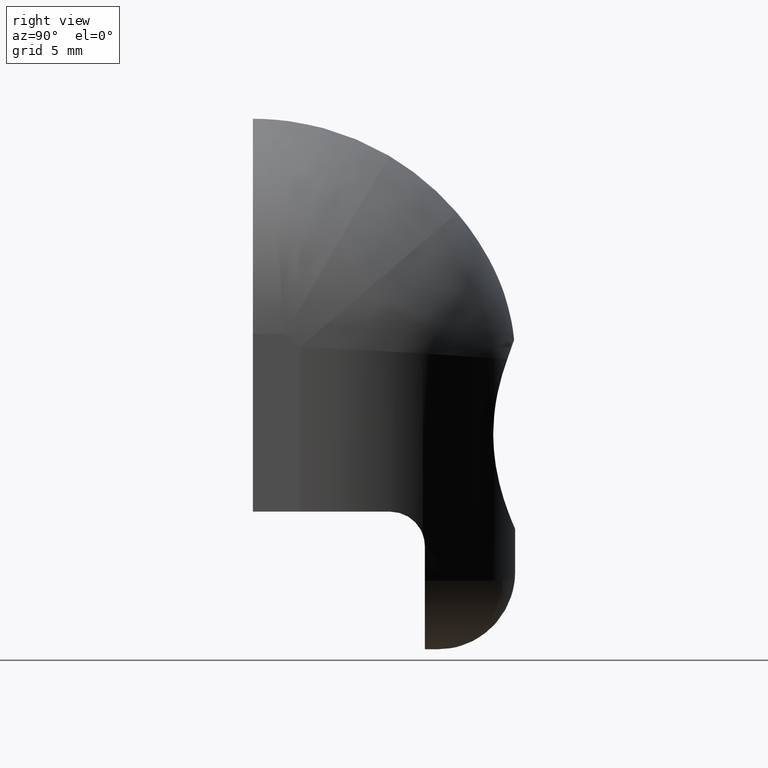
[diagram: clean part render]
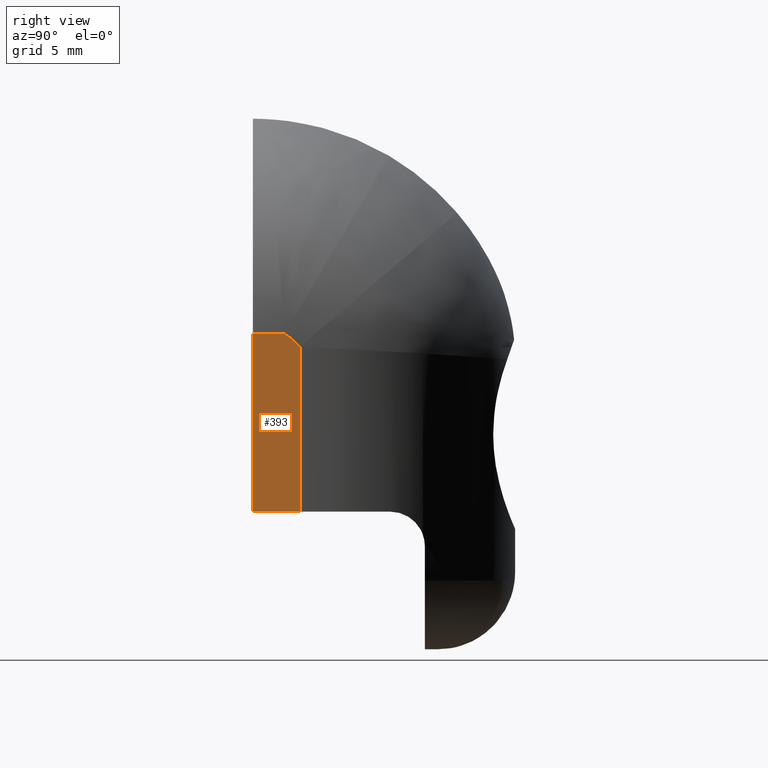
[diagram: same view with one face highlighted and labeled with its STEP entity id]
A machine part, right view. The second image highlights one B-rep face of the part: STEP entity #393.
In plain terms, the highlighted planar face has unit normal (1, 0, 0).
Its self-contained STEP definition (entity closure, byte-faithful):
#33=LINE('',#838,#50);
#40=LINE('',#1204,#57);
#41=LINE('',#1207,#58);
#43=LINE('',#1210,#60);
#50=VECTOR('',#488,10.);
#57=VECTOR('',#541,10.);
#58=VECTOR('',#544,10.);
#60=VECTOR('',#548,10.);
#66=PLANE('',#452);
#92=FACE_OUTER_BOUND('',#117,.T.);
#117=EDGE_LOOP('',(#355,#356,#357,#358,#359));
#156=CIRCLE('',#443,3.61734693877551);
#177=VERTEX_POINT('',#828);
#178=VERTEX_POINT('',#837);
#189=VERTEX_POINT('',#1156);
#193=VERTEX_POINT('',#1202);
#194=VERTEX_POINT('',#1206);
#219=EDGE_CURVE('',#178,#177,#33,.T.);
#241=EDGE_CURVE('',#189,#177,#156,.T.);
#248=EDGE_CURVE('',#189,#193,#40,.T.);
#249=EDGE_CURVE('',#194,#178,#41,.T.);
#251=EDGE_CURVE('',#194,#193,#43,.T.);
#355=ORIENTED_EDGE('',*,*,#241,.F.);
#356=ORIENTED_EDGE('',*,*,#248,.T.);
#357=ORIENTED_EDGE('',*,*,#251,.F.);
#358=ORIENTED_EDGE('',*,*,#249,.T.);
#359=ORIENTED_EDGE('',*,*,#219,.T.);
#393=ADVANCED_FACE('',(#92),#66,.T.);
#443=AXIS2_PLACEMENT_3D('',#1190,#522,#523);
#452=AXIS2_PLACEMENT_3D('',#1209,#546,#547);
#488=DIRECTION('',(0.,0.,1.));
#522=DIRECTION('center_axis',(-1.,0.,0.));
#523=DIRECTION('ref_axis',(0.,0.695248106443174,0.718769831369668));
#541=DIRECTION('',(0.,-1.,0.));
#544=DIRECTION('',(0.,1.,0.));
#546=DIRECTION('center_axis',(1.,0.,0.));
#547=DIRECTION('ref_axis',(0.,1.,0.));
#548=DIRECTION('',(0.,0.,1.));
#828=CARTESIAN_POINT('',(12.5,1.37499999999999,2.08269537477302));
#837=CARTESIAN_POINT('',(12.5,1.375,-7.50000000000001));
#838=CARTESIAN_POINT('',(12.5,1.37499999999999,0.));
#1156=CARTESIAN_POINT('',(12.5,0.460033225523581,2.85));
#1190=CARTESIAN_POINT('Origin',(12.5,-1.37500000000001,-0.267346938775521));
#1202=CARTESIAN_POINT('',(12.5,-1.37500000000001,2.84999999999999));
#1204=CARTESIAN_POINT('',(12.5,-1.37500000000001,2.84999999999999));
#1206=CARTESIAN_POINT('',(12.5,-1.37500000000001,-7.50000000000001));
#1207=CARTESIAN_POINT('',(12.5,-1.37500000000001,-7.50000000000001));
#1209=CARTESIAN_POINT('Origin',(12.5,-1.37500000000001,0.));
#1210=CARTESIAN_POINT('',(12.5,-1.37500000000001,0.));